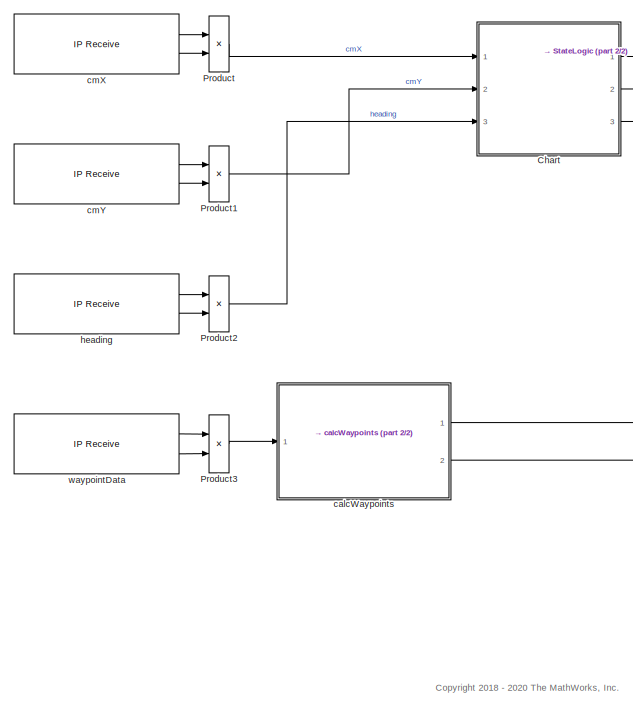
[diagram: root canvas - part 1/2, left side, full height]
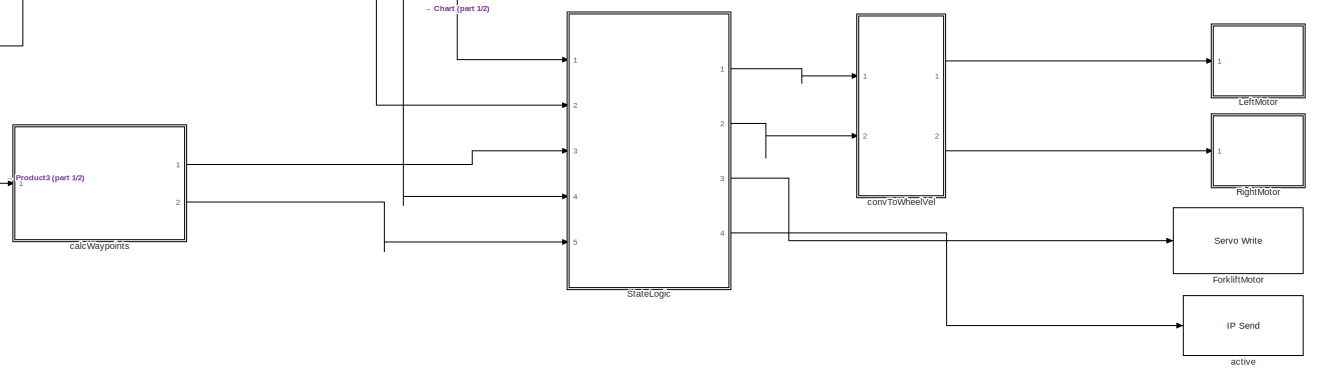
[diagram: root canvas - part 2/2, full width, middle band]
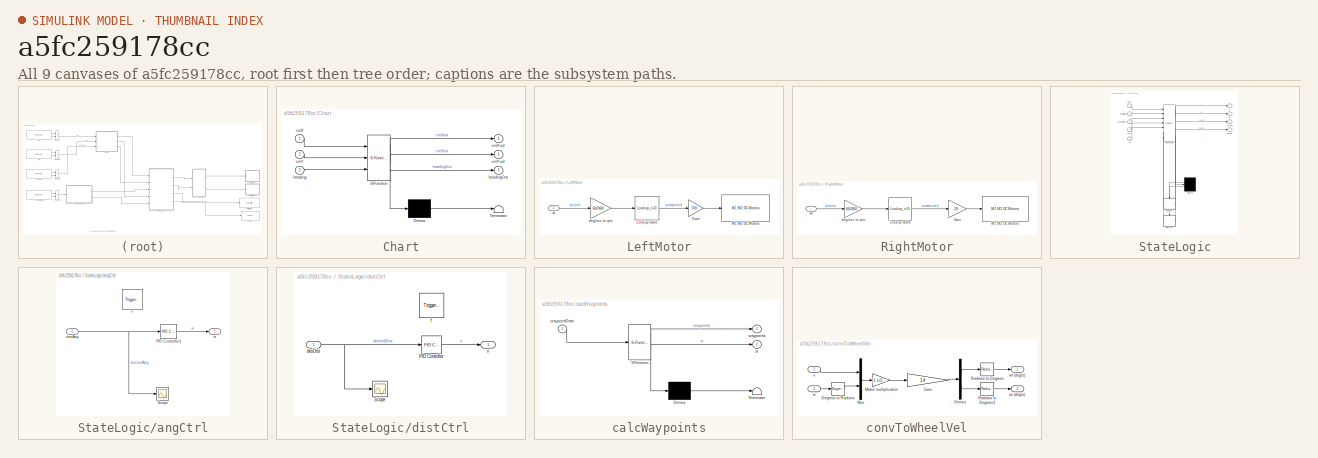
[diagram: thumbnail index - all 9 canvases of the model, root first then tree order]
MODEL slx_a5fc259178cc
KIND model
CONFIG AbsTol = auto
CONFIG EnableMultiTasking = on
CONFIG FixedStep = TS
CONFIG MaxStep = auto
CONFIG MinStep = auto
CONFIG PostLoadFcn = paramsBasicKinematics\nload('motorResponse.mat')
CONFIG RelTol = 1e-3
CONFIG SampleTimeConstraint = Unconstrained
CONFIG SolverName = FixedStepAuto
CONFIG StartTime = 0.0
CONFIG StopTime = inf
WORKSPACE source: mxarray member
WORKSPACE TS = 0.01
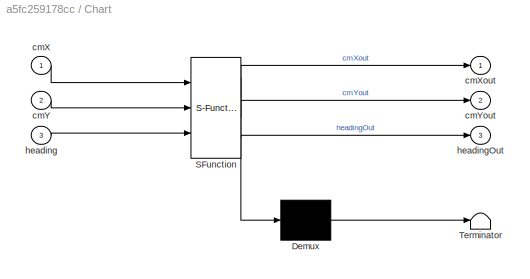
BLOCK [SubSystem] Chart
  ErrorFcn = Stateflow.Translate.translate
  PermitHierarchicalResolution = ExplicitOnly
  Ports = [3, 3]
  RequestExecContextInheritance = off
  SFBlockType = Chart
  TreatAsAtomicUnit = on
BLOCK [Demux] Chart/ Demux 
  Outputs = 1
  Ports = [1, 1]
BLOCK [S-Function] Chart/ SFunction 
  EnableBusSupport = on
  FunctionName = sf_sfun
  PortCounts = [3 4]
  Ports = [3, 4]
  SFcnIsStateOwnerBlock = off
  SFunctionDeploymentMode = off
  Tag = Stateflow S-Function 2
BLOCK [Terminator] Chart/ Terminator 
BLOCK [Inport] Chart/cmX
BLOCK [Outport] Chart/cmXout
BLOCK [Inport] Chart/cmY
  Port = 2
BLOCK [Outport] Chart/cmYout
  Port = 2
BLOCK [Inport] Chart/heading
  Port = 3
BLOCK [Outport] Chart/headingOut
  Port = 3
BLOCK [Reference] ForkliftMotor  REF=arduinomotorcarrierlib/Servo Write
  Ports = [1]
  SourceBlock = arduinomotorcarrierlib/Servo Write
  SourceProductBaseCode = ARDUINO
  SourceType = MKR Servo Motor
BLOCK [SubSystem] LeftMotor
  Ports = [1]
  RequestExecContextInheritance = off
BLOCK [Gain] LeftMotor/Gain
  Gain = 100
BLOCK [Lookup_n-D] LeftMotor/Lookup table
  BreakpointsForDimension1 = speedMono_L
  InputPortMap = u0
  InternalRulePriority = Speed
  NumberOfTableDimensions = 1
  Ports = [1, 1]
  RndMeth = Simplest
  Table = PWMcmdMono_L
  UseLastTableValue = on
BLOCK [Reference] LeftMotor/M1 M2 DC Motors  REF=arduinomotorcarrierlib/M1 M2 DC Motors
  Ports = [1]
  SourceBlock = arduinomotorcarrierlib/M1 M2 DC Motors
  SourceProductName = Simulink Support Package for Arduino Hardware
  SourceType = DC Motor
BLOCK [Gain] LeftMotor/deg//sec to rpm
  Gain = 60/360
BLOCK [Inport] LeftMotor/wl
BLOCK [Product] Product
  Ports = [2, 1]
BLOCK [Product] Product1
  Ports = [2, 1]
BLOCK [Product] Product2
  Ports = [2, 1]
BLOCK [Product] Product3
  Ports = [2, 1]
BLOCK [SubSystem] RightMotor
  Ports = [1]
  RequestExecContextInheritance = off
BLOCK [Gain] RightMotor/Gain
  Gain = -70
BLOCK [Lookup_n-D] RightMotor/Lookup table
  BreakpointsForDimension1 = speedMono_R
  InputPortMap = u0
  InternalRulePriority = Speed
  NumberOfTableDimensions = 1
  Ports = [1, 1]
  RndMeth = Simplest
  Table = PWMcmdMono_R
  UseLastTableValue = on
BLOCK [Reference] RightMotor/M1 M2 DC Motors  REF=arduinomotorcarrierlib/M1 M2 DC Motors
  Ports = [1]
  SourceBlock = arduinomotorcarrierlib/M1 M2 DC Motors
  SourceProductName = Simulink Support Package for Arduino Hardware
  SourceType = DC Motor
BLOCK [Gain] RightMotor/deg//sec to rpm
  Gain = 60/360
BLOCK [Inport] RightMotor/wr
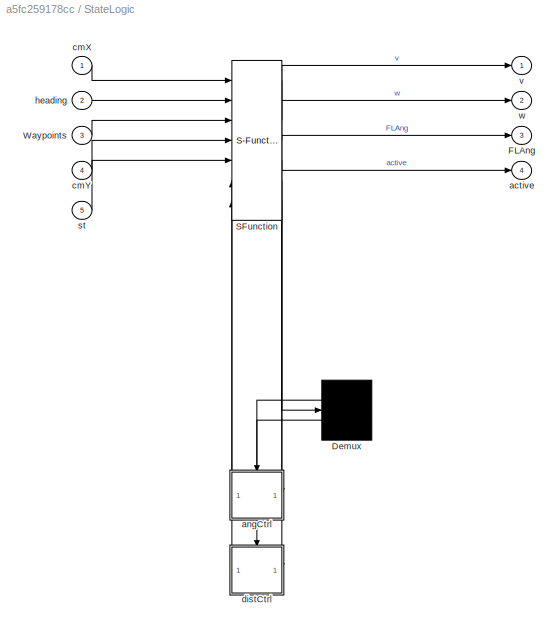
BLOCK [SubSystem] StateLogic
  ErrorFcn = Stateflow.Translate.translate
  PermitHierarchicalResolution = ExplicitOnly
  Ports = [5, 4]
  RequestExecContextInheritance = off
  SFBlockType = Chart
  TreatAsAtomicUnit = on
BLOCK [Demux] StateLogic/ Demux 
  Outputs = 2
  Ports = [1, 2]
BLOCK [S-Function] StateLogic/ SFunction 
  EnableBusSupport = on
  FunctionName = sf_sfun
  PortCounts = [7 7]
  Ports = [7, 7]
  SFcnIsStateOwnerBlock = off
  SFunctionDeploymentMode = off
  Tag = Stateflow S-Function 3
BLOCK [Outport] StateLogic/FLAng
  Port = 3
  VectorParamsAs1DForOutWhenUnconnected = off
BLOCK [Inport] StateLogic/Waypoints
  Port = 3
BLOCK [Outport] StateLogic/active
  Port = 4
BLOCK [SubSystem] StateLogic/angCtrl
  Ports = [1, 1, 0, 1]
  PreDeleteFcn = Stateflow.SLINSF.SimulinkMan.removePreDeleteFcn
  RequestExecContextInheritance = off
  UndoDeleteFcn = Stateflow.SLINSF.SimulinkMan.restorePreDeleteFcn
BLOCK [Reference] StateLogic/angCtrl/PID Controller1  REF=pid_lib/PID Controller
  Ports = [1, 1]
  SourceBlock = pid_lib/PID Controller
  SourceProductBaseCode = SL
  SourceType = PID 1dof
BLOCK [Scope] StateLogic/angCtrl/Scope
  Floating = off
  NumInputPorts = 1
  Ports = [1]
  ScopeSpecificationString = Simulink.scopes.TimeScopeBlockCfg('CurrentConfiguration', extmgr.ConfigurationSet(extmgr.Configuration('Core','General UI',true),extmgr.Configuration('Core','Source UI',true),extmgr.Configuration('Sources','WiredSimulink',true,'DataLoggingVariableName','ScopeData1'),extmgr.Configuration('Visuals','Time Domain',true,'SerializedDisplays',{struct('MinYLimReal','-111.49574','MaxYLimReal','112.75704','...<+1465ch>
BLOCK [Inport] StateLogic/angCtrl/desAng
  OutDataTypeStr = double
  PortDimensions = 1
  SignalType = real
  VarSizeSig = No
BLOCK [TriggerPort] StateLogic/angCtrl/f
  CopyFcn = Stateflow.SLINSF.SimulinkMan.removeBlockPreDeleteFcn
  Ports = []
  PreDeleteFcn = Stateflow.SLINSF.SimulinkMan.unsafePredeleteFcn
  PropagateVarSize = Only when enabling
  SampleTime = TS
  SampleTimeType = periodic
  StatesWhenEnabling = held
  TriggerType = function-call
  VariantControl = (inherit)
BLOCK [Outport] StateLogic/angCtrl/w
  VectorParamsAs1DForOutWhenUnconnected = off
BLOCK [Inport] StateLogic/cmX
BLOCK [Inport] StateLogic/cmY
  Port = 4
BLOCK [SubSystem] StateLogic/distCtrl
  Ports = [1, 1, 0, 1]
  PreDeleteFcn = Stateflow.SLINSF.SimulinkMan.removePreDeleteFcn
  RequestExecContextInheritance = off
  UndoDeleteFcn = Stateflow.SLINSF.SimulinkMan.restorePreDeleteFcn
BLOCK [Reference] StateLogic/distCtrl/PID Controller  REF=pid_lib/PID Controller
  Ports = [1, 1]
  SourceBlock = pid_lib/PID Controller
  SourceProductBaseCode = SL
  SourceType = PID 1dof
BLOCK [Scope] StateLogic/distCtrl/Scope
  Floating = off
  NumInputPorts = 1
  Ports = [1]
  ScopeSpecificationString = Simulink.scopes.TimeScopeBlockCfg('CurrentConfiguration', extmgr.ConfigurationSet(extmgr.Configuration('Core','General UI',true),extmgr.Configuration('Core','Source UI',true),extmgr.Configuration('Sources','WiredSimulink',true,'DataLoggingVariableName','ScopeData1'),extmgr.Configuration('Visuals','Time Domain',true,'SerializedDisplays',{struct('MinYLimReal','7.84994','MaxYLimReal','13.82343','YLab...<+1455ch>
BLOCK [Inport] StateLogic/distCtrl/desDist
  OutDataTypeStr = double
  PortDimensions = 1
  SignalType = real
  VarSizeSig = No
BLOCK [TriggerPort] StateLogic/distCtrl/f
  CopyFcn = Stateflow.SLINSF.SimulinkMan.removeBlockPreDeleteFcn
  Ports = []
  PreDeleteFcn = Stateflow.SLINSF.SimulinkMan.unsafePredeleteFcn
  PropagateVarSize = Only when enabling
  SampleTime = TS
  SampleTimeType = periodic
  StatesWhenEnabling = held
  TriggerType = function-call
  VariantControl = (inherit)
BLOCK [Outport] StateLogic/distCtrl/v
  VectorParamsAs1DForOutWhenUnconnected = off
BLOCK [Inport] StateLogic/heading
  Port = 2
BLOCK [Inport] StateLogic/st
  Port = 5
BLOCK [Outport] StateLogic/v
  VectorParamsAs1DForOutWhenUnconnected = off
BLOCK [Outport] StateLogic/w
  Port = 2
  VectorParamsAs1DForOutWhenUnconnected = off
BLOCK [Reference] active  REF=arduinowifilib/WiFi TCP//IP Send
  Ports = [1]
  SourceBlock = arduinowifilib/WiFi TCP//IP Send
  SourceProductBaseCode = ARDUINO
  SourceType = Arduino WiFi TCP Send
BLOCK [SubSystem] calcWaypoints
  ErrorFcn = Stateflow.Translate.translate
  PermitHierarchicalResolution = ExplicitOnly
  Ports = [1, 2]
  RequestExecContextInheritance = off
  SFBlockType = Chart
  TreatAsAtomicUnit = on
BLOCK [Demux] calcWaypoints/ Demux 
  Outputs = 1
  Ports = [1, 1]
BLOCK [S-Function] calcWaypoints/ SFunction 
  EnableBusSupport = on
  FunctionName = sf_sfun
  PortCounts = [1 3]
  Ports = [1, 3]
  SFcnIsStateOwnerBlock = off
  SFunctionDeploymentMode = off
  Tag = Stateflow S-Function 1
BLOCK [Terminator] calcWaypoints/ Terminator 
BLOCK [Outport] calcWaypoints/st
  Port = 2
BLOCK [Inport] calcWaypoints/waypointData
BLOCK [Outport] calcWaypoints/waypoints
BLOCK [Reference] cmX  REF=arduinowifilib/WiFi TCP//IP Receive
  Ports = [0, 2]
  SourceBlock = arduinowifilib/WiFi TCP//IP Receive
  SourceProductBaseCode = ARDUINO
  SourceType = Arduino WiFi TCP Receive
BLOCK [Reference] cmY  REF=arduinowifilib/WiFi TCP//IP Receive
  Ports = [0, 2]
  SourceBlock = arduinowifilib/WiFi TCP//IP Receive
  SourceProductBaseCode = ARDUINO
  SourceType = Arduino WiFi TCP Receive
BLOCK [SubSystem] convToWheelVel
  Ports = [2, 2]
  RequestExecContextInheritance = off
BLOCK [Gain] convToWheelVel/ Gain
  Gain = 1/r
  Multiplication = Matrix(K*u)
BLOCK [Reference] convToWheelVel/Degrees to Radians  REF=simulink_extras/Transformations/Degrees to
Radians
  Ports = [1, 1]
  SourceBlock = simulink_extras/Transformations/Degrees to\nRadians
  SourceProductBaseCode = SL
  SourceType = DegreesToRadians
BLOCK [Demux] convToWheelVel/Demux
  Outputs = 2
  Ports = [1, 2]
BLOCK [Gain] convToWheelVel/Matrix multiplication
  Gain = [1 -L/2; 1 L/2]
  Multiplication = Matrix(K*u)
BLOCK [Mux] convToWheelVel/Mux
  DisplayOption = bar
  Inputs = 2
  Ports = [2, 1]
BLOCK [Reference] convToWheelVel/Radians to Degrees  REF=simulink_extras/Transformations/Radians
to Degrees
  Ports = [1, 1]
  SourceBlock = simulink_extras/Transformations/Radians\nto Degrees
  SourceProductBaseCode = SL
  SourceType = RadiansToDegrees
BLOCK [Reference] convToWheelVel/Radians to Degrees1  REF=simulink_extras/Transformations/Radians
to Degrees
  Ports = [1, 1]
  SourceBlock = simulink_extras/Transformations/Radians\nto Degrees
  SourceProductBaseCode = SL
  SourceType = RadiansToDegrees
BLOCK [Inport] convToWheelVel/v
BLOCK [Inport] convToWheelVel/w
  Port = 2
BLOCK [Outport] convToWheelVel/wl (deg//s)
  VectorParamsAs1DForOutWhenUnconnected = off
BLOCK [Outport] convToWheelVel/wr (deg//s)
  Port = 2
  VectorParamsAs1DForOutWhenUnconnected = off
BLOCK [Reference] heading  REF=arduinowifilib/WiFi TCP//IP Receive
  Ports = [0, 2]
  SourceBlock = arduinowifilib/WiFi TCP//IP Receive
  SourceProductBaseCode = ARDUINO
  SourceType = Arduino WiFi TCP Receive
BLOCK [Reference] waypointData  REF=arduinowifilib/WiFi TCP//IP Receive
  Ports = [0, 2]
  SourceBlock = arduinowifilib/WiFi TCP//IP Receive
  SourceProductBaseCode = ARDUINO
  SourceType = Arduino WiFi TCP Receive
ANNOTATION (root): <copyright redacted>
LINE Chart:1 -> StateLogic:1
LINE Chart:2 -> StateLogic:4
LINE Chart:3 -> StateLogic:2
LINE LeftMotor/Gain:1 -> LeftMotor/M1 M2 DC Motors:1
LINE LeftMotor/Lookup table:1 -> LeftMotor/Gain:1
LINE LeftMotor/deg//sec to rpm:1 -> LeftMotor/Lookup table:1
LINE LeftMotor/wl:1 -> LeftMotor/deg//sec to rpm:1
LINE Product1:1 -> Chart:2
LINE Product2:1 -> Chart:3
LINE Product3:1 -> calcWaypoints:1
LINE Product:1 -> Chart:1
LINE RightMotor/Gain:1 -> RightMotor/M1 M2 DC Motors:1
LINE RightMotor/Lookup table:1 -> RightMotor/Gain:1
LINE RightMotor/deg//sec to rpm:1 -> RightMotor/Lookup table:1
LINE RightMotor/wr:1 -> RightMotor/deg//sec to rpm:1
LINE StateLogic:1 -> convToWheelVel:1
LINE StateLogic:2 -> convToWheelVel:2
LINE StateLogic:3 -> ForkliftMotor:1
LINE StateLogic:4 -> active:1
LINE calcWaypoints:1 -> StateLogic:3
LINE calcWaypoints:2 -> StateLogic:5
LINE cmX:1 -> Product:1
LINE cmX:2 -> Product:2
LINE cmY:1 -> Product1:1
LINE cmY:2 -> Product1:2
LINE convToWheelVel/ Gain:1 -> convToWheelVel/Demux:1
LINE convToWheelVel/Degrees to Radians:1 -> convToWheelVel/Mux:2
LINE convToWheelVel/Demux:1 -> convToWheelVel/Radians to Degrees:1
LINE convToWheelVel/Demux:2 -> convToWheelVel/Radians to Degrees1:1
LINE convToWheelVel/Matrix multiplication:1 -> convToWheelVel/ Gain:1
LINE convToWheelVel/Mux:1 -> convToWheelVel/Matrix multiplication:1
LINE convToWheelVel/Radians to Degrees1:1 -> convToWheelVel/wr (deg//s):1
LINE convToWheelVel/Radians to Degrees:1 -> convToWheelVel/wl (deg//s):1
LINE convToWheelVel/v:1 -> convToWheelVel/Mux:1
LINE convToWheelVel/w:1 -> convToWheelVel/Degrees to Radians:1
LINE convToWheelVel:1 -> LeftMotor:1
LINE convToWheelVel:2 -> RightMotor:1
LINE heading:1 -> Product2:1
LINE heading:2 -> Product2:2
LINE waypointData:1 -> Product3:1
LINE waypointData:2 -> Product3:2
CHART calcWaypoints states=4 transitions=6
  STATE_LABEL 'waitForCalc\nen, du, ex:\nst = 0;'
  STATE_LABEL 'send\nen:\nwaypoints = way;\nst = 1;'
  STATE_LABEL 'calc\nen:\nway(row, col) = waypointData;\nst = 0;'
  STATE_LABEL 'modPos\nen:\ncol = 0;\nrow = row + 1;\nst = 0;'
CHART Chart states=4 transitions=7
  STATE_LABEL 'modifyHEADING\nen:\nheadingOldValue = heading;\n'
  STATE_LABEL 'Send\nen:\ncmXout = cmXOldValue;\ncmYout = cmYOldValue;\nheadingOut = headingOldValue;'
  STATE_LABEL 'modifyCMX\nen:\ncmXOldValue = cmX;\n'
  STATE_LABEL 'modifyCMY\nen:\ncmYOldValue = cmY;\n'
CHART StateLogic states=16 transitions=20
  STATE_LABEL 'Pause\nentry:\nv = 0; w= 0; FLAng = 160;\nactive = 1;\n'
  STATE_LABEL 'Pause1\nentry:\nv = 0; w = 0; FLAng = 160;\nactive = 1;\n'
  STATE_LABEL 'desAngle  = calcAngle(Index)'
  STATE_LABEL 'SCRIPT:\nfunction desAngle  = calcAngle(Index)\n\ntoReachX = Waypoints(Index+1,1);\ntoReachY = Waypoints(Index+1,2);\nx = cmX;\ny = cmY;\ndistX = toReachX - x;\ndistY = toReachY - y;\nif distX > 0 && distY >= 0\n    quadrant = 1;\nelseif distX <= 0 && distY > 0\n    quadrant = 2;\nelseif distX < 0 && distY <= 0\n    quadrant = 3;\nelseif distX >= 0 && distY < 0\n    quadrant = 4;\nelse\n    quadrant = 0;\nend\ndesAng...<+677ch>'
  STATE_LABEL 'MoveForwardAndDrop\n'
  STATE_LABEL 'MoveToNextWayPoint\nen:\ndesDist = calcDist(WPIndex)-10;\nv = distCtrl(desDist);\ndu, ex:\ndesDist = calcDist(WPIndex)-10;\nv = distCtrl(desDist);\nw = 0;'
  STATE_LABEL 'DropForklift\nen, du, ex:\nv = 0;\nw = 0;\nFLAng = FLAng-1;\n'
  STATE_LABEL '[abs(desDist) < 6]{WPIndex = WPIndex+1}'
  STATE_LABEL '[FLAng < 80]'
  STATE_LABEL 'MoveToNextWayPoint\nen:\ndesDist = calcDist(WPIndex)-10;\nv = distCtrl(desDist);\ndu, ex:\ndesDist = calcDist(WPIndex)-10;\nv = distCtrl(desDist);\nw = 0;'
  STATE_LABEL 'DropForklift\nen, du, ex:\nv = 0;\nw = 0;\nFLAng = FLAng-1;\n'
  STATE_LABEL 'Turn\nen:\ndesAng = calcAngle(WPIndex);\nw = angCtrl(desAng);\ndu:\ndesAng = calcAngle(WPIndex);\nv = 0;\nw = angCtrl(desAng);\nex:\nw = 0;'
  STATE_LABEL 'desDistance = calcDist(Index)'
  STATE_LABEL 'SCRIPT:\nfunction desDistance = calcDist(Index)\n\ntoReachX = Waypoints(Index+1,1);\ntoReachY = Waypoints(Index+1,2);\nx = cmX;\ny = cmY;\ndistX = toReachX - x;\ndistY = toReachY - y;\ndesDistance = sqrt(distX^2+distY^2);\nend\n'
  STATE_LABEL 'w = angCtrl(desAng)'
  STATE_LABEL 'MoveForwardAndPickUp\n'
  STATE_LABEL 'MoveToNextWayPoint\nen:\ndesDist = calcDist(WPIndex);\nv = distCtrl(desDist);\ndu, ex:\ndesDist = calcDist(WPIndex);\nv = distCtrl(desDist);\nw = 0;'
  STATE_LABEL 'DropForklift\nen, du, ex:\nv = 0;\nw = 0;\nFLAng = FLAng-1;\n'
  STATE_LABEL 'MoveRemaining\ndu, ex:\ndesDist = calcDist(WPIndex);\nv = distCtrl(desDist);\nw = 0;'
  STATE_LABEL 'LiftForklift1\nen, du, ex:\nv = 0;\nw = 0;\nFLAng = FLAng+1;\n'
  STATE_LABEL '[abs(desDist) < 20]'
  STATE_LABEL '[FLAng < 80]'
  STATE_LABEL '[abs(desDist) < 6]{WPIndex = WPIndex+1}'
  STATE_LABEL '[FLAng > 160]'
  STATE_LABEL 'MoveToNextWayPoint\nen:\ndesDist = calcDist(WPIndex);\nv = distCtrl(desDist);\ndu, ex:\ndesDist = calcDist(WPIndex);\nv = distCtrl(desDist);\nw = 0;'
  STATE_LABEL 'DropForklift\nen, du, ex:\nv = 0;\nw = 0;\nFLAng = FLAng-1;\n'
  STATE_LABEL 'MoveRemaining\ndu, ex:\ndesDist = calcDist(WPIndex);\nv = distCtrl(desDist);\nw = 0;'
  STATE_LABEL 'LiftForklift1\nen, du, ex:\nv = 0;\nw = 0;\nFLAng = FLAng+1;\n'
  STATE_LABEL 'v = distCtrl(desDist)'
  STATE_LABEL 'Stop\nen:\nv = 0;\nw = 0;\nactive = 0;\n'
CHART  states=0 transitions=0
CHART  states=0 transitions=0
CHART  states=0 transitions=0
